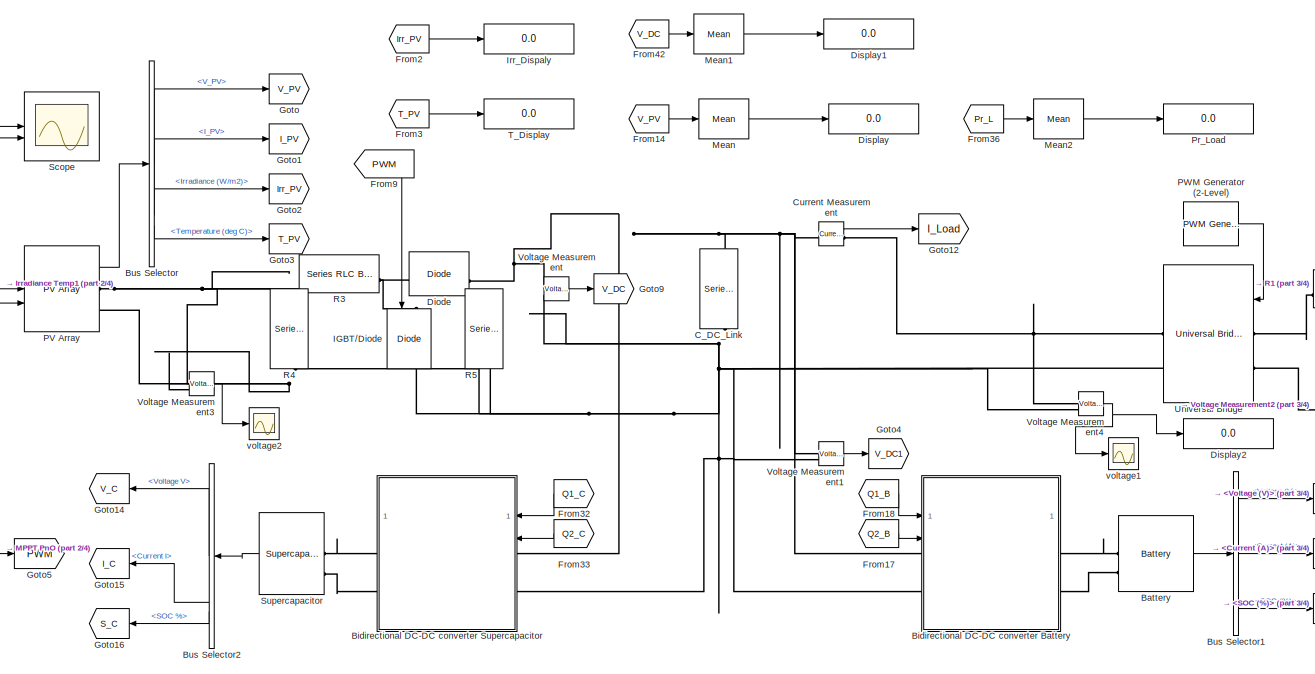
[diagram: root canvas - part 1/4, top center region]
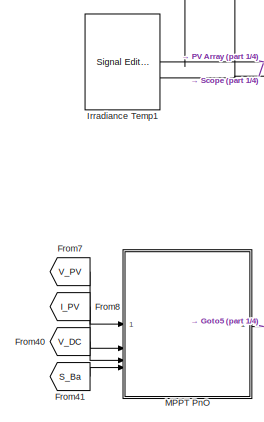
[diagram: root canvas - part 2/4, top left region]
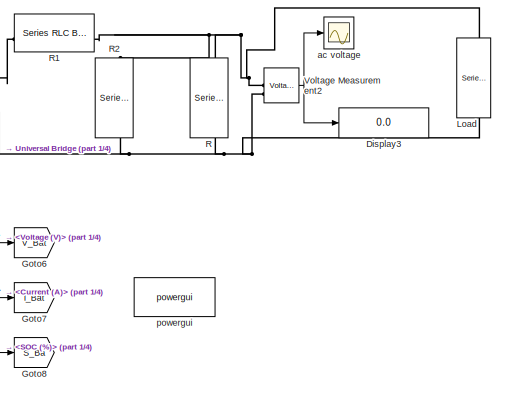
[diagram: root canvas - part 3/4, middle right region]
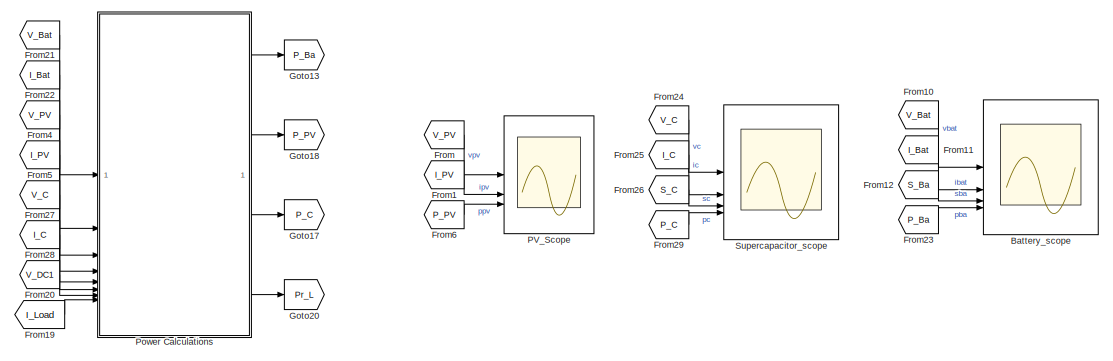
[diagram: root canvas - part 4/4, bottom center region]
MODEL slx_5cccdf73b0bd
KIND model
CONFIG AbsTol = auto
CONFIG EnableMultiTasking = off
CONFIG FixedStep = auto
CONFIG MaxStep = auto
CONFIG MinStep = auto
CONFIG RelTol = 1e-3
CONFIG SampleTimeConstraint = Unconstrained
CONFIG SolverName = VariableStepAuto
CONFIG StartTime = 0.0
CONFIG StopTime = 0.08
BLOCK [Scope]  voltage1
  Floating = off
  NumInputPorts = 1
  ScopeSpecificationString = Simulink.scopes.TimeScopeBlockCfg('CurrentConfiguration', extmgr.ConfigurationSet(extmgr.Configuration('Core','General UI',true),extmgr.Configuration('Core','Source UI',true),extmgr.Configuration('Sources','WiredSimulink',true,'DataLoggingVariableName','ScopeData2'),extmgr.Configuration('Visuals','Time Domain',true,'SerializedDisplays',{struct('MinYLimReal','-0.27831','MaxYLimReal','109.1714','YLa...<+1526ch>
BLOCK [Scope]  voltage2
  Floating = off
  NumInputPorts = 1
  ScopeSpecificationString = Simulink.scopes.TimeScopeBlockCfg('CurrentConfiguration', extmgr.ConfigurationSet(extmgr.Configuration('Core','General UI',true),extmgr.Configuration('Core','Source UI',true),extmgr.Configuration('Sources','WiredSimulink',true,'DataLoggingVariableName','ScopeData3'),extmgr.Configuration('Visuals','Time Domain',true,'SerializedDisplays',{struct('MinYLimReal','-5.09686','MaxYLimReal','45.87173','YLa...<+1526ch>
BLOCK [Reference] Battery  REF=spsBatteryLib/Battery
  LibrarySourceBlock = electricdrivelib/Extra Sources/Battery
  SourceBlock = spsBatteryLib/Battery
  SourceType = Battery
BLOCK [Scope] Battery_scope 
  Floating = off
  NumInputPorts = 4
  ScopeSpecificationString = Simulink.scopes.TimeScopeBlockCfg('CurrentConfiguration', extmgr.ConfigurationSet(extmgr.Configuration('Core','General UI',true,'FigureColor',[1 1 1]),extmgr.Configuration('Core','Source UI',true),extmgr.Configuration('Sources','WiredSimulink',true,'DataLoggingVariableName','ScopeData4'),extmgr.Configuration('Visuals','Time Domain',true,'SerializedDisplays',{struct('MinYLimReal','-7.30209','MaxYLi...<+4000ch>
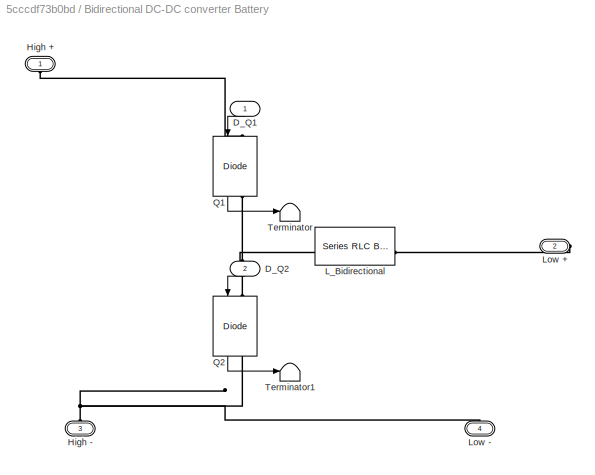
BLOCK [SubSystem] Bidirectional DC-DC converter Battery
BLOCK [Inport] Bidirectional DC-DC converter Battery/D_Q1
  NameLocation = right
BLOCK [Inport] Bidirectional DC-DC converter Battery/D_Q2
  NameLocation = right
  Port = 2
BLOCK [PMIOPort] Bidirectional DC-DC converter Battery/High +
  NameLocation = right
  Side = Left
BLOCK [PMIOPort] Bidirectional DC-DC converter Battery/High -
  NameLocation = right
  Port = 3
  Side = Left
BLOCK [Reference] Bidirectional DC-DC converter Battery/L_Bidirectional  REF=spsSeriesRLCBranchLib/Series RLC Branch
  SourceBlock = spsSeriesRLCBranchLib/Series RLC Branch
  SourceType = Series RLC Branch
BLOCK [PMIOPort] Bidirectional DC-DC converter Battery/Low +
  Port = 2
  Side = Right
BLOCK [PMIOPort] Bidirectional DC-DC converter Battery/Low -
  NameLocation = right
  Port = 4
  Side = Right
BLOCK [Reference] Bidirectional DC-DC converter Battery/Q1  REF=spsIGBTDiodeLib/IGBT//Diode
  NameLocation = left
  SourceBlock = spsIGBTDiodeLib/IGBT//Diode
  SourceType = IGBT/Diode
BLOCK [Reference] Bidirectional DC-DC converter Battery/Q2  REF=spsIGBTDiodeLib/IGBT//Diode
  NameLocation = left
  SourceBlock = spsIGBTDiodeLib/IGBT//Diode
  SourceType = IGBT/Diode
BLOCK [Terminator] Bidirectional DC-DC converter Battery/Terminator
BLOCK [Terminator] Bidirectional DC-DC converter Battery/Terminator1
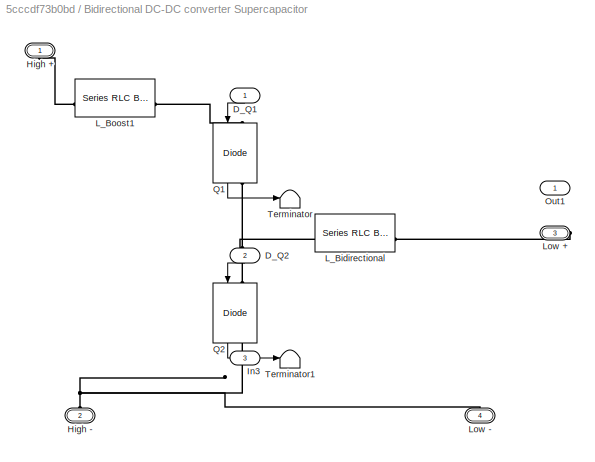
BLOCK [SubSystem] Bidirectional DC-DC converter Supercapacitor
  PortSchema = {"entries":[{"content":{"sides":[{"content":{"connectorIds":["In1","In2","LConn1","LConn2"]},"type":"ConnectorPlacement.EquallySpacedRectSide","uuid":"c533c918-45e6-4bb2-9e3a-3a0a53f4d1ca"},{"content":{"connectorIds":["RConn1","RConn2"],"side":"RIGHT"},"type":"ConnectorPlacement.EquallySpacedRectSide","uuid":"96c665be-f2b1-41b8-8d3f-74d67d5a585a"},{"content":{"connectorIds":["Out1","In3"],"side":"...<+287ch>
BLOCK [Inport] Bidirectional DC-DC converter Supercapacitor/D_Q1
  NameLocation = right
BLOCK [Inport] Bidirectional DC-DC converter Supercapacitor/D_Q2
  NameLocation = right
  Port = 2
BLOCK [PMIOPort] Bidirectional DC-DC converter Supercapacitor/High +
  NameLocation = right
  Side = Left
BLOCK [PMIOPort] Bidirectional DC-DC converter Supercapacitor/High -
  NameLocation = right
  Port = 2
  Side = Left
BLOCK [Inport] Bidirectional DC-DC converter Supercapacitor/In3
  Port = 3
BLOCK [Reference] Bidirectional DC-DC converter Supercapacitor/L_Bidirectional  REF=spsSeriesRLCBranchLib/Series RLC Branch
  SourceBlock = spsSeriesRLCBranchLib/Series RLC Branch
  SourceType = Series RLC Branch
BLOCK [Reference] Bidirectional DC-DC converter Supercapacitor/L_Boost1  REF=spsSeriesRLCBranchLib/Series RLC Branch
  SourceBlock = spsSeriesRLCBranchLib/Series RLC Branch
  SourceType = Series RLC Branch
BLOCK [PMIOPort] Bidirectional DC-DC converter Supercapacitor/Low +
  Port = 3
  Side = Right
BLOCK [PMIOPort] Bidirectional DC-DC converter Supercapacitor/Low -
  NameLocation = right
  Port = 4
  Side = Right
BLOCK [Outport] Bidirectional DC-DC converter Supercapacitor/Out1
BLOCK [Reference] Bidirectional DC-DC converter Supercapacitor/Q1  REF=spsIGBTDiodeLib/IGBT//Diode
  NameLocation = left
  SourceBlock = spsIGBTDiodeLib/IGBT//Diode
  SourceType = IGBT/Diode
BLOCK [Reference] Bidirectional DC-DC converter Supercapacitor/Q2  REF=spsIGBTDiodeLib/IGBT//Diode
  NameLocation = left
  SourceBlock = spsIGBTDiodeLib/IGBT//Diode
  SourceType = IGBT/Diode
BLOCK [Terminator] Bidirectional DC-DC converter Supercapacitor/Terminator
BLOCK [Terminator] Bidirectional DC-DC converter Supercapacitor/Terminator1
BLOCK [BusSelector] Bus Selector
  OutputSignals = V_PV,I_PV,Irradiance (W/m2),Temperature (deg C)
BLOCK [BusSelector] Bus Selector1
  OutputSignals = Voltage (V),Current (A),SOC (%)
BLOCK [BusSelector] Bus Selector2
  OutputSignals = Voltage V,SOC %,Current I,SOC %
BLOCK [Reference] C_DC_Link  REF=spsSeriesRLCBranchLib/Series RLC Branch
  LibrarySourceBlock = sps_lib/Passives/Series RLC Branch
  NameLocation = left
  SourceBlock = spsSeriesRLCBranchLib/Series RLC Branch
  SourceType = Series RLC Branch
BLOCK [Reference] Current Measurement  REF=spsCurrentMeasurementLib/Current Measurement
  LibrarySourceBlock = sps_lib/Sensors and Measurements/Current Measurement
  SourceBlock = spsCurrentMeasurementLib/Current Measurement
  SourceType = Current Measurement
  UserDataPersistent = on
BLOCK [Reference] Diode  REF=spsDiodeLib/Diode
  LibrarySourceBlock = sps_lib/Power Electronics/Diode
  SourceBlock = spsDiodeLib/Diode
  SourceType = Diode
BLOCK [Display] Display
  Decimation = 1
BLOCK [Display] Display1
  Decimation = 1
BLOCK [Display] Display2
  Decimation = 1
BLOCK [Display] Display3
  Decimation = 1
BLOCK [From] From
  GotoTag = V_PV
  TagVisibility = global
BLOCK [From] From1
  GotoTag = I_PV
  TagVisibility = global
BLOCK [From] From10
  GotoTag = V_Bat
  TagVisibility = global
BLOCK [From] From11
  GotoTag = I_Bat
  TagVisibility = global
BLOCK [From] From12
  GotoTag = S_Ba
  TagVisibility = global
BLOCK [From] From14
  GotoTag = V_PV
  TagVisibility = global
BLOCK [From] From17
  GotoTag = Q2_B
BLOCK [From] From18
  GotoTag = Q1_B
BLOCK [From] From19
  GotoTag = I_Load
  TagVisibility = global
BLOCK [From] From2
  GotoTag = Irr_PV
  TagVisibility = global
BLOCK [From] From20
  GotoTag = V_DC1
  TagVisibility = global
BLOCK [From] From21
  GotoTag = V_Bat
  TagVisibility = global
BLOCK [From] From22
  GotoTag = I_Bat
  TagVisibility = global
BLOCK [From] From23
  GotoTag = P_Ba
  TagVisibility = global
BLOCK [From] From24
  GotoTag = V_C
  TagVisibility = global
BLOCK [From] From25
  GotoTag = I_C
  TagVisibility = global
BLOCK [From] From26
  GotoTag = S_C
  TagVisibility = global
BLOCK [From] From27
  GotoTag = V_C
  TagVisibility = global
BLOCK [From] From28
  GotoTag = I_C
  TagVisibility = global
BLOCK [From] From29
  GotoTag = P_C
  TagVisibility = global
BLOCK [From] From3
  GotoTag = T_PV
  TagVisibility = global
BLOCK [From] From32
  GotoTag = Q1_C
BLOCK [From] From33
  GotoTag = Q2_C
BLOCK [From] From36
  GotoTag = Pr_L
  TagVisibility = global
BLOCK [From] From4
  GotoTag = V_PV
  TagVisibility = global
BLOCK [From] From40
  GotoTag = V_DC
  TagVisibility = global
BLOCK [From] From41
  GotoTag = S_Ba
  TagVisibility = global
BLOCK [From] From42
  GotoTag = V_DC
  TagVisibility = global
BLOCK [From] From5
  GotoTag = I_PV
  TagVisibility = global
BLOCK [From] From6
  GotoTag = P_PV
  TagVisibility = global
BLOCK [From] From7
  GotoTag = V_PV
  TagVisibility = global
BLOCK [From] From8
  GotoTag = I_PV
  TagVisibility = global
BLOCK [From] From9
  GotoTag = PWM
  TagVisibility = global
BLOCK [Goto] Goto
  GotoTag = V_PV
  TagVisibility = global
BLOCK [Goto] Goto1
  GotoTag = I_PV
  TagVisibility = global
BLOCK [Goto] Goto12
  GotoTag = I_Load
  TagVisibility = global
BLOCK [Goto] Goto13
  GotoTag = P_Ba
  TagVisibility = global
BLOCK [Goto] Goto14
  GotoTag = V_C
  TagVisibility = global
BLOCK [Goto] Goto15
  GotoTag = I_C
  TagVisibility = global
BLOCK [Goto] Goto16
  GotoTag = S_C
  TagVisibility = global
BLOCK [Goto] Goto17
  GotoTag = P_C
  TagVisibility = global
BLOCK [Goto] Goto18
  GotoTag = P_PV
  TagVisibility = global
BLOCK [Goto] Goto2
  GotoTag = Irr_PV
  TagVisibility = global
BLOCK [Goto] Goto20
  GotoTag = Pr_L
  TagVisibility = global
BLOCK [Goto] Goto3
  GotoTag = T_PV
  TagVisibility = global
BLOCK [Goto] Goto4
  GotoTag = V_DC1
  TagVisibility = global
BLOCK [Goto] Goto5
  GotoTag = PWM
  TagVisibility = global
BLOCK [Goto] Goto6
  GotoTag = V_Bat
  TagVisibility = global
BLOCK [Goto] Goto7
  GotoTag = I_Bat
  TagVisibility = global
BLOCK [Goto] Goto8
  GotoTag = S_Ba
  TagVisibility = global
BLOCK [Goto] Goto9
  GotoTag = V_DC
  TagVisibility = global
BLOCK [Reference] IGBT//Diode  REF=spsIGBTDiodeLib/IGBT//Diode
  NameLocation = left
  SourceBlock = spsIGBTDiodeLib/IGBT//Diode
  SourceType = IGBT/Diode
BLOCK [Display] Irr_Dispaly
  Decimation = 1
BLOCK [Reference] Irradiance Temp1  REF=SignalEditorBlockLib/Signal Editor
  LibrarySourceBlock = simulink/Sources/Signal Editor
  SourceBlock = SignalEditorBlockLib/Signal Editor
  SourceType = SignalEditor
  UserDataPersistent = on
BLOCK [Reference] Load  REF=spsSeriesRLCLoadLib/Series RLC Load
  AttributesFormatString = \n
  LibrarySourceBlock = sps_lib/Passives/Series RLC Load
  NameLocation = left
  SourceBlock = spsSeriesRLCLoadLib/Series RLC Load
  SourceType = Series RLC Load
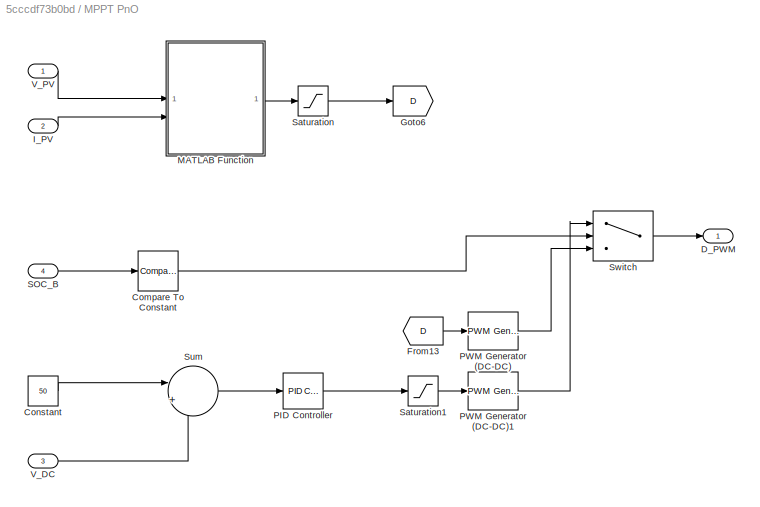
BLOCK [SubSystem] MPPT PnO
BLOCK [Reference] MPPT PnO/Compare To Constant  REF=simulink/Logic and Bit
Operations/Compare
To Constant
  SourceBlock = simulink/Logic and Bit\nOperations/Compare\nTo Constant
  SourceType = Compare To Constant
BLOCK [Constant] MPPT PnO/Constant
  Value = 50
BLOCK [Outport] MPPT PnO/D_PWM
BLOCK [From] MPPT PnO/From13
  GotoTag = D
BLOCK [Goto] MPPT PnO/Goto6
  GotoTag = D
BLOCK [Inport] MPPT PnO/I_PV
  Port = 2
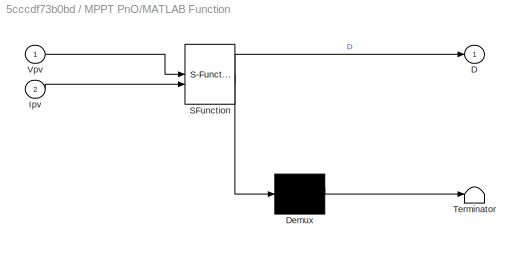
BLOCK [SubSystem] MPPT PnO/MATLAB Function
  ErrorFcn = Stateflow.Translate.translate
  PermitHierarchicalResolution = ExplicitOnly
  SFBlockType = MATLAB Function
  TreatAsAtomicUnit = on
BLOCK [Demux] MPPT PnO/MATLAB Function/ Demux 
  Outputs = 1
BLOCK [S-Function] MPPT PnO/MATLAB Function/ SFunction 
  EnableBusSupport = on
  FunctionName = sf_sfun
  PortCounts = [2 2]
  SFcnIsStateOwnerBlock = off
  SFunctionDeploymentMode = off
  Tag = Stateflow S-Function 2
BLOCK [Terminator] MPPT PnO/MATLAB Function/ Terminator 
BLOCK [Outport] MPPT PnO/MATLAB Function/D
BLOCK [Inport] MPPT PnO/MATLAB Function/Ipv
  Port = 2
BLOCK [Inport] MPPT PnO/MATLAB Function/Vpv
BLOCK [Reference] MPPT PnO/PID Controller  REF=slpidlib/PID Controller
  SourceBlock = slpidlib/PID Controller
  SourceType = PID 1dof
BLOCK [Reference] MPPT PnO/PWM Generator (DC-DC)  REF=spsPWMGeneratorDCDCLib/PWM Generator
(DC-DC)
  SourceBlock = spsPWMGeneratorDCDCLib/PWM Generator\n(DC-DC)
  SourceType = PWM Generator (DC-DC)
BLOCK [Reference] MPPT PnO/PWM Generator (DC-DC)1  REF=spsPWMGeneratorDCDCLib/PWM Generator
(DC-DC)
  SourceBlock = spsPWMGeneratorDCDCLib/PWM Generator\n(DC-DC)
  SourceType = PWM Generator (DC-DC)
BLOCK [Inport] MPPT PnO/SOC_B
  Port = 4
BLOCK [Saturate] MPPT PnO/Saturation
BLOCK [Saturate] MPPT PnO/Saturation1
BLOCK [Sum] MPPT PnO/Sum
  Inputs = |+-
BLOCK [Switch] MPPT PnO/Switch
  Criteria = u2 > Threshold
  InputSameDT = off
  SaturateOnIntegerOverflow = off
BLOCK [Inport] MPPT PnO/V_DC
  Port = 3
BLOCK [Inport] MPPT PnO/V_PV
BLOCK [Reference] Mean  REF=spsMeanLib/Mean
  LibrarySourceBlock = sps_lib/Sensors and Measurements/Mean
  SourceBlock = spsMeanLib/Mean
  SourceType = Mean
BLOCK [Reference] Mean1  REF=spsMeanLib/Mean
  LibrarySourceBlock = sps_lib/Sensors and Measurements/Mean
  SourceBlock = spsMeanLib/Mean
  SourceType = Mean
BLOCK [Reference] Mean2  REF=spsMeanLib/Mean
  LibrarySourceBlock = sps_lib/Sensors and Measurements/Mean
  SourceBlock = spsMeanLib/Mean
  SourceType = Mean
BLOCK [Reference] PV Array  REF=spsPVArrayLib/PV Array
  LibrarySourceBlock = sps_lib/Sources/PV Array
  SourceBlock = spsPVArrayLib/PV Array
  SourceType = PV array
BLOCK [Scope] PV_Scope
  Floating = off
  NumInputPorts = 3
  ScopeSpecificationString = Simulink.scopes.TimeScopeBlockCfg('CurrentConfiguration', extmgr.ConfigurationSet(extmgr.Configuration('Core','General UI',true,'FigureColor',[1 1 1]),extmgr.Configuration('Core','Source UI',true),extmgr.Configuration('Sources','WiredSimulink',true,'DataLoggingVariableName','ScopeData5'),extmgr.Configuration('Visuals','Time Domain',true,'SerializedDisplays',{struct('MinYLimReal','-5.09686','MaxYLi...<+3257ch>
BLOCK [Reference] PWM Generator (2-Level)  REF=spsPWMGenerator2LevelLib/PWM Generator
(2-Level)
  LibrarySourceBlock = sps_lib/Power Electronics/Power Electronics Control/PWM Generator\n(2-Level)
  SourceBlock = spsPWMGenerator2LevelLib/PWM Generator\n(2-Level)
  SourceType = PWM Generator (2-Level)
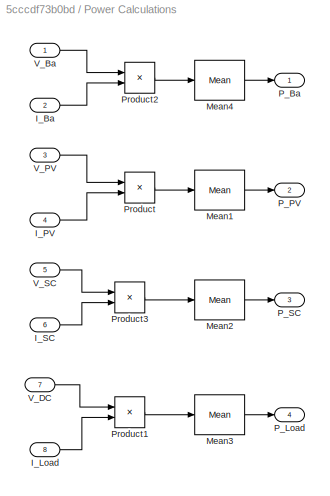
BLOCK [SubSystem] Power Calculations
BLOCK [Inport] Power Calculations/I_Ba
  Port = 2
BLOCK [Inport] Power Calculations/I_Load
  Port = 8
BLOCK [Inport] Power Calculations/I_PV
  Port = 4
BLOCK [Inport] Power Calculations/I_SC
  Port = 6
BLOCK [Reference] Power Calculations/Mean1  REF=spsMeanLib/Mean
  SourceBlock = spsMeanLib/Mean
  SourceType = Mean
BLOCK [Reference] Power Calculations/Mean2  REF=spsMeanLib/Mean
  SourceBlock = spsMeanLib/Mean
  SourceType = Mean
BLOCK [Reference] Power Calculations/Mean3  REF=spsMeanLib/Mean
  SourceBlock = spsMeanLib/Mean
  SourceType = Mean
BLOCK [Reference] Power Calculations/Mean4  REF=spsMeanLib/Mean
  SourceBlock = spsMeanLib/Mean
  SourceType = Mean
BLOCK [Outport] Power Calculations/P_Ba
BLOCK [Outport] Power Calculations/P_Load
  Port = 4
BLOCK [Outport] Power Calculations/P_PV
  Port = 2
BLOCK [Outport] Power Calculations/P_SC
  Port = 3
BLOCK [Product] Power Calculations/Product
BLOCK [Product] Power Calculations/Product1
BLOCK [Product] Power Calculations/Product2
BLOCK [Product] Power Calculations/Product3
BLOCK [Inport] Power Calculations/V_Ba
BLOCK [Inport] Power Calculations/V_DC
  Port = 7
BLOCK [Inport] Power Calculations/V_PV
  Port = 3
BLOCK [Inport] Power Calculations/V_SC
  Port = 5
BLOCK [Display] Pr_Load
  Decimation = 1
BLOCK [Reference] R  REF=spsSeriesRLCBranchLib/Series RLC Branch
  LibrarySourceBlock = sps_lib/Passives/Series RLC Branch
  NameLocation = left
  SourceBlock = spsSeriesRLCBranchLib/Series RLC Branch
  SourceType = Series RLC Branch
BLOCK [Reference] R1  REF=spsSeriesRLCBranchLib/Series RLC Branch
  LibrarySourceBlock = sps_lib/Passives/Series RLC Branch
  SourceBlock = spsSeriesRLCBranchLib/Series RLC Branch
  SourceType = Series RLC Branch
BLOCK [Reference] R2  REF=spsSeriesRLCBranchLib/Series RLC Branch
  LibrarySourceBlock = sps_lib/Passives/Series RLC Branch
  NameLocation = left
  SourceBlock = spsSeriesRLCBranchLib/Series RLC Branch
  SourceType = Series RLC Branch
BLOCK [Reference] R3  REF=spsSeriesRLCBranchLib/Series RLC Branch
  LibrarySourceBlock = sps_lib/Passives/Series RLC Branch
  SourceBlock = spsSeriesRLCBranchLib/Series RLC Branch
  SourceType = Series RLC Branch
BLOCK [Reference] R4  REF=spsSeriesRLCBranchLib/Series RLC Branch
  LibrarySourceBlock = sps_lib/Passives/Series RLC Branch
  NameLocation = left
  SourceBlock = spsSeriesRLCBranchLib/Series RLC Branch
  SourceType = Series RLC Branch
BLOCK [Reference] R5  REF=spsSeriesRLCBranchLib/Series RLC Branch
  LibrarySourceBlock = sps_lib/Passives/Series RLC Branch
  NameLocation = left
  SourceBlock = spsSeriesRLCBranchLib/Series RLC Branch
  SourceType = Series RLC Branch
BLOCK [Scope] Scope
  Floating = off
  NumInputPorts = 2
  ScopeSpecificationString = Simulink.scopes.TimeScopeBlockCfg('CurrentConfiguration', extmgr.ConfigurationSet(extmgr.Configuration('Core','General UI',true),extmgr.Configuration('Core','Source UI',true),extmgr.Configuration('Sources','WiredSimulink',true,'DataLoggingVariableName','ScopeData6'),extmgr.Configuration('Visuals','Time Domain',true,'SerializedDisplays',{struct('MinYLimReal','-124.47606','MaxYLimReal','1120.28456',...<+2191ch>
BLOCK [Reference] Supercapacitor  REF=spsSupercapacitorLib/Supercapacitor
  LibrarySourceBlock = electricdrivelib/Extra Sources/Supercapacitor
  SourceBlock = spsSupercapacitorLib/Supercapacitor
  SourceType = Supercapacitor
BLOCK [Scope] Supercapacitor_scope
  Floating = off
  NumInputPorts = 4
  ScopeSpecificationString = Simulink.scopes.TimeScopeBlockCfg('CurrentConfiguration', extmgr.ConfigurationSet(extmgr.Configuration('Core','General UI',true,'FigureColor',[1 1 1]),extmgr.Configuration('Core','Source UI',true),extmgr.Configuration('Sources','WiredSimulink',true),extmgr.Configuration('Visuals','Time Domain',true,'SerializedDisplays',{struct('MinYLimReal','31.99127','MaxYLimReal','32.00095','YLabelReal','','MinY...<+4055ch>
BLOCK [Display] T_Display
  Decimation = 1
BLOCK [Reference] Universal Bridge  REF=spsUniversalBridgeLib/Universal Bridge
  LibrarySourceBlock = sps_lib/Power Electronics/Universal Bridge
  SourceBlock = spsUniversalBridgeLib/Universal Bridge
  SourceType = Universal Bridge
BLOCK [Reference] Voltage Measurement  REF=spsVoltageMeasurementLib/Voltage Measurement
  LibrarySourceBlock = sps_lib/Sensors and Measurements/Voltage Measurement
  SourceBlock = spsVoltageMeasurementLib/Voltage Measurement
  SourceType = Voltage Measurement
  UserDataPersistent = on
BLOCK [Reference] Voltage Measurement1  REF=spsVoltageMeasurementLib/Voltage Measurement
  LibrarySourceBlock = sps_lib/Sensors and Measurements/Voltage Measurement
  SourceBlock = spsVoltageMeasurementLib/Voltage Measurement
  SourceType = Voltage Measurement
  UserDataPersistent = on
BLOCK [Reference] Voltage Measurement2  REF=spsVoltageMeasurementLib/Voltage Measurement
  LibrarySourceBlock = sps_lib/Sensors and Measurements/Voltage Measurement
  SourceBlock = spsVoltageMeasurementLib/Voltage Measurement
  SourceType = Voltage Measurement
  UserDataPersistent = on
BLOCK [Reference] Voltage Measurement3  REF=spsVoltageMeasurementLib/Voltage Measurement
  LibrarySourceBlock = sps_lib/Sensors and Measurements/Voltage Measurement
  SourceBlock = spsVoltageMeasurementLib/Voltage Measurement
  SourceType = Voltage Measurement
  UserDataPersistent = on
BLOCK [Reference] Voltage Measurement4  REF=spsVoltageMeasurementLib/Voltage Measurement
  LibrarySourceBlock = sps_lib/Sensors and Measurements/Voltage Measurement
  SourceBlock = spsVoltageMeasurementLib/Voltage Measurement
  SourceType = Voltage Measurement
  UserDataPersistent = on
BLOCK [Scope] ac voltage
  Floating = off
  NumInputPorts = 1
  ScopeSpecificationString = Simulink.scopes.TimeScopeBlockCfg('CurrentConfiguration', extmgr.ConfigurationSet(extmgr.Configuration('Core','General UI',true),extmgr.Configuration('Core','Source UI',true),extmgr.Configuration('Sources','WiredSimulink',true,'DataLoggingVariableName','ScopeData1'),extmgr.Configuration('Visuals','Time Domain',true,'SerializedDisplays',{struct('MinYLimReal','-52.28834','MaxYLimReal','53.34239','YL...<+1547ch>
BLOCK [Reference] powergui  REF=sps_lib/powergui
  LibrarySourceBlock = sps_lib/powergui
  Priority = 1
  SourceBlock = sps_lib/powergui
  SourceType = PSB option menu block
LINE Battery:1 -> Bus Selector1:1
LINE Bidirectional DC-DC converter Battery/D_Q1:1 -> Bidirectional DC-DC converter Battery/Q1:1
LINE Bidirectional DC-DC converter Battery/D_Q2:1 -> Bidirectional DC-DC converter Battery/Q2:1
LINE Bidirectional DC-DC converter Battery/Q1:1 -> Bidirectional DC-DC converter Battery/Terminator:1
LINE Bidirectional DC-DC converter Battery/Q2:1 -> Bidirectional DC-DC converter Battery/Terminator1:1
LINE Bidirectional DC-DC converter Supercapacitor/D_Q1:1 -> Bidirectional DC-DC converter Supercapacitor/Q1:1
LINE Bidirectional DC-DC converter Supercapacitor/D_Q2:1 -> Bidirectional DC-DC converter Supercapacitor/Q2:1
LINE Bidirectional DC-DC converter Supercapacitor/Q1:1 -> Bidirectional DC-DC converter Supercapacitor/Terminator:1
LINE Bidirectional DC-DC converter Supercapacitor/Q2:1 -> Bidirectional DC-DC converter Supercapacitor/Terminator1:1
LINE Bus Selector1:1 -> Goto6:1
LINE Bus Selector1:2 -> Goto7:1
LINE Bus Selector1:3 -> Goto8:1
LINE Bus Selector2:1 -> Goto14:1
LINE Bus Selector2:3 -> Goto15:1
LINE Bus Selector2:4 -> Goto16:1
LINE Bus Selector:1 -> Goto:1
LINE Bus Selector:2 -> Goto1:1
LINE Bus Selector:3 -> Goto2:1
LINE Bus Selector:4 -> Goto3:1
LINE Current Measurement:1 -> Goto12:1
LINE From10:1 -> Battery_scope :1
LINE From11:1 -> Battery_scope :2
LINE From12:1 -> Battery_scope :3
LINE From14:1 -> Mean:1
LINE From17:1 -> Bidirectional DC-DC converter Battery:2
LINE From18:1 -> Bidirectional DC-DC converter Battery:1
LINE From19:1 -> Power Calculations:8
LINE From1:1 -> PV_Scope:2
LINE From20:1 -> Power Calculations:7
LINE From21:1 -> Power Calculations:1
LINE From22:1 -> Power Calculations:2
LINE From23:1 -> Battery_scope :4
LINE From24:1 -> Supercapacitor_scope:1
LINE From25:1 -> Supercapacitor_scope:2
LINE From26:1 -> Supercapacitor_scope:3
LINE From27:1 -> Power Calculations:5
LINE From28:1 -> Power Calculations:6
LINE From29:1 -> Supercapacitor_scope:4
LINE From2:1 -> Irr_Dispaly:1
LINE From32:1 -> Bidirectional DC-DC converter Supercapacitor:1
LINE From33:1 -> Bidirectional DC-DC converter Supercapacitor:2
LINE From36:1 -> Mean2:1
LINE From3:1 -> T_Display:1
LINE From40:1 -> MPPT PnO:3
LINE From41:1 -> MPPT PnO:4
LINE From42:1 -> Mean1:1
LINE From4:1 -> Power Calculations:3
LINE From5:1 -> Power Calculations:4
LINE From6:1 -> PV_Scope:3
LINE From7:1 -> MPPT PnO:1
LINE From8:1 -> MPPT PnO:2
LINE From9:1 -> IGBT//Diode:1
LINE From:1 -> PV_Scope:1
NET Irradiance Temp1:1 -> PV Array:1, Scope:1
NET Irradiance Temp1:2 -> PV Array:2, Scope:2
LINE MPPT PnO/Compare To Constant:1 -> MPPT PnO/Switch:2
LINE MPPT PnO/Constant:1 -> MPPT PnO/Sum:1
LINE MPPT PnO/From13:1 -> MPPT PnO/PWM Generator (DC-DC):1
LINE MPPT PnO/I_PV:1 -> MPPT PnO/MATLAB Function:2
LINE MPPT PnO/MATLAB Function:1 -> MPPT PnO/Saturation:1
LINE MPPT PnO/PID Controller:1 -> MPPT PnO/Saturation1:1
LINE MPPT PnO/PWM Generator (DC-DC)1:1 -> MPPT PnO/Switch:1
LINE MPPT PnO/PWM Generator (DC-DC):1 -> MPPT PnO/Switch:3
LINE MPPT PnO/SOC_B:1 -> MPPT PnO/Compare To Constant:1
LINE MPPT PnO/Saturation1:1 -> MPPT PnO/PWM Generator (DC-DC)1:1
LINE MPPT PnO/Saturation:1 -> MPPT PnO/Goto6:1
LINE MPPT PnO/Sum:1 -> MPPT PnO/PID Controller:1
LINE MPPT PnO/Switch:1 -> MPPT PnO/D_PWM:1
LINE MPPT PnO/V_DC:1 -> MPPT PnO/Sum:2
LINE MPPT PnO/V_PV:1 -> MPPT PnO/MATLAB Function:1
LINE MPPT PnO:1 -> Goto5:1
LINE Mean1:1 -> Display1:1
LINE Mean2:1 -> Pr_Load:1
LINE Mean:1 -> Display:1
LINE PV Array:1 -> Bus Selector:1
LINE PWM Generator (2-Level):1 -> Universal Bridge:1
LINE Power Calculations/I_Ba:1 -> Power Calculations/Product2:2
LINE Power Calculations/I_Load:1 -> Power Calculations/Product1:2
LINE Power Calculations/I_PV:1 -> Power Calculations/Product:2
LINE Power Calculations/I_SC:1 -> Power Calculations/Product3:2
LINE Power Calculations/Mean1:1 -> Power Calculations/P_PV:1
LINE Power Calculations/Mean2:1 -> Power Calculations/P_SC:1
LINE Power Calculations/Mean3:1 -> Power Calculations/P_Load:1
LINE Power Calculations/Mean4:1 -> Power Calculations/P_Ba:1
LINE Power Calculations/Product1:1 -> Power Calculations/Mean3:1
LINE Power Calculations/Product2:1 -> Power Calculations/Mean4:1
LINE Power Calculations/Product3:1 -> Power Calculations/Mean2:1
LINE Power Calculations/Product:1 -> Power Calculations/Mean1:1
LINE Power Calculations/V_Ba:1 -> Power Calculations/Product2:1
LINE Power Calculations/V_DC:1 -> Power Calculations/Product1:1
LINE Power Calculations/V_PV:1 -> Power Calculations/Product:1
LINE Power Calculations/V_SC:1 -> Power Calculations/Product3:1
LINE Power Calculations:1 -> Goto13:1
LINE Power Calculations:2 -> Goto18:1
LINE Power Calculations:3 -> Goto17:1
LINE Power Calculations:4 -> Goto20:1
LINE Supercapacitor:1 -> Bus Selector2:1
LINE Voltage Measurement1:1 -> Goto4:1
NET Voltage Measurement2:1 -> Display3:1, ac voltage:1
LINE Voltage Measurement3:1 ->  voltage2:1
NET Voltage Measurement4:1 ->  voltage1:1, Display2:1
LINE Voltage Measurement:1 -> Goto9:1
PLINE Battery:LConn1 -- Bidirectional DC-DC converter Battery:RConn1
PLINE Battery:LConn2 -- Bidirectional DC-DC converter Battery:RConn2
PLINE Bidirectional DC-DC converter Battery/High +:RConn1 -- Bidirectional DC-DC converter Battery/Q1:LConn1
PNET net1: Bidirectional DC-DC converter Battery/High -:RConn1 -- Bidirectional DC-DC converter Battery/Low -:RConn1 -- Bidirectional DC-DC converter Battery/Q2:RConn1
PNET net2: Bidirectional DC-DC converter Battery/L_Bidirectional:LConn1 -- Bidirectional DC-DC converter Battery/Q1:RConn1 -- Bidirectional DC-DC converter Battery/Q2:LConn1
PLINE Bidirectional DC-DC converter Battery/L_Bidirectional:RConn1 -- Bidirectional DC-DC converter Battery/Low +:RConn1
PNET net3: Bidirectional DC-DC converter Battery:LConn1 -- Bidirectional DC-DC converter Supercapacitor:LConn1 -- C_DC_Link:LConn1 -- Current Measurement:LConn1 -- Diode:RConn1 -- Voltage Measurement1:LConn1 -- Voltage Measurement:LConn1
PNET net4: Bidirectional DC-DC converter Battery:LConn2 -- Bidirectional DC-DC converter Supercapacitor:LConn2 -- C_DC_Link:RConn1 -- IGBT//Diode:RConn1 -- PV Array:RConn2 -- R4:RConn1 -- R5:RConn1 -- Universal Bridge:RConn2 -- Voltage Measurement1:LConn2 -- Voltage Measurement3:LConn2 -- Voltage Measurement4:LConn2 -- Voltage Measurement:LConn2
PLINE Bidirectional DC-DC converter Supercapacitor/High +:RConn1 -- Bidirectional DC-DC converter Supercapacitor/L_Boost1:LConn1
PNET net5: Bidirectional DC-DC converter Supercapacitor/High -:RConn1 -- Bidirectional DC-DC converter Supercapacitor/Low -:RConn1 -- Bidirectional DC-DC converter Supercapacitor/Q2:RConn1
PNET net6: Bidirectional DC-DC converter Supercapacitor/L_Bidirectional:LConn1 -- Bidirectional DC-DC converter Supercapacitor/Q1:RConn1 -- Bidirectional DC-DC converter Supercapacitor/Q2:LConn1
PLINE Bidirectional DC-DC converter Supercapacitor/L_Bidirectional:RConn1 -- Bidirectional DC-DC converter Supercapacitor/Low +:RConn1
PLINE Bidirectional DC-DC converter Supercapacitor/L_Boost1:RConn1 -- Bidirectional DC-DC converter Supercapacitor/Q1:LConn1
PLINE Bidirectional DC-DC converter Supercapacitor:RConn1 -- Supercapacitor:LConn1
PLINE Bidirectional DC-DC converter Supercapacitor:RConn2 -- Supercapacitor:LConn2
PNET net7: Current Measurement:RConn1 -- Universal Bridge:RConn1 -- Voltage Measurement4:LConn1
PNET net8: Diode:LConn1 -- IGBT//Diode:LConn1 -- R3:RConn1
PNET net9: Load:LConn1 -- R1:RConn1 -- R2:LConn1 -- R:LConn1 -- Voltage Measurement2:LConn1
PNET net10: Load:RConn1 -- R2:RConn1 -- R:RConn1 -- Universal Bridge:LConn2 -- Voltage Measurement2:LConn2
PNET net11: PV Array:RConn1 -- R3:LConn1 -- R4:LConn1 -- Voltage Measurement3:LConn1
PLINE R1:LConn1 -- Universal Bridge:LConn1
note: NET lines group one-source signal fan-out (src -> all destinations, sorted); 1:1 wires keep LINE; PNET lines group multi-terminal physical nets as a canonical sorted terminal list (undirected conserving connections); 2-terminal nets keep the pairwise PLINE form
CHART MPPT PnO/MATLAB Function states=1 transitions=1
  STATE_LABEL 'eML_blk_kernel()'
  STATE_LABEL 'SCRIPT:\nfunction D = PandO(Vpv,Ipv)\n\npersistent Dold Pold Vold\n\n\nif isempty(Dold)\n    Dold = 0.35;\n    Vold = 17;\n    Pold = 120;\nend\n\n\ndeltaD = 0.001;\n\nPpv = Vpv*Ipv;\n\nif (Ppv-Pold) ~= 0\n    if (Ppv-Pold) > 0\n        if (Vpv-Vold) > 0\n            D = Dold - deltaD;\n        else\n            D = Dold + deltaD;\n        end\n    else\n        if (Vpv-Vold) > 0\n            D = Dold + deltaD;\n        els...<+119ch>'
CHART  states=0 transitions=0
